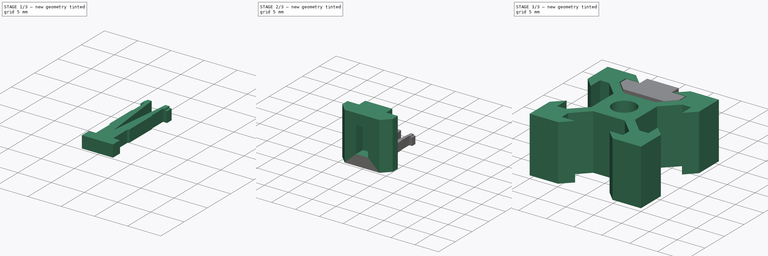
[diagram: build sequence overview — one tinted view per stage of 3, left to right]
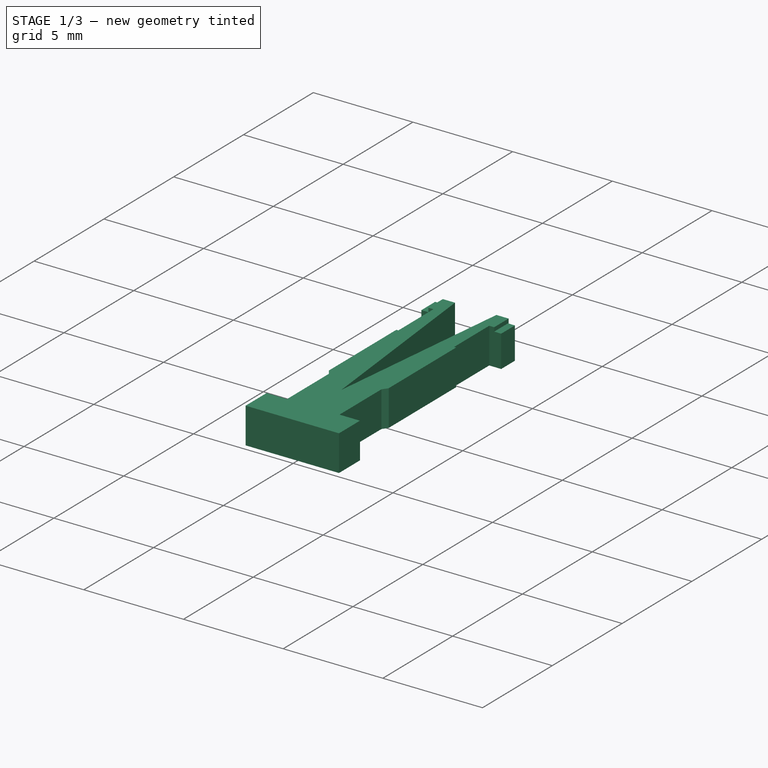
[diagram: stage 1 of 3 — iso view after this stage's code; geometry added in this stage tinted green]
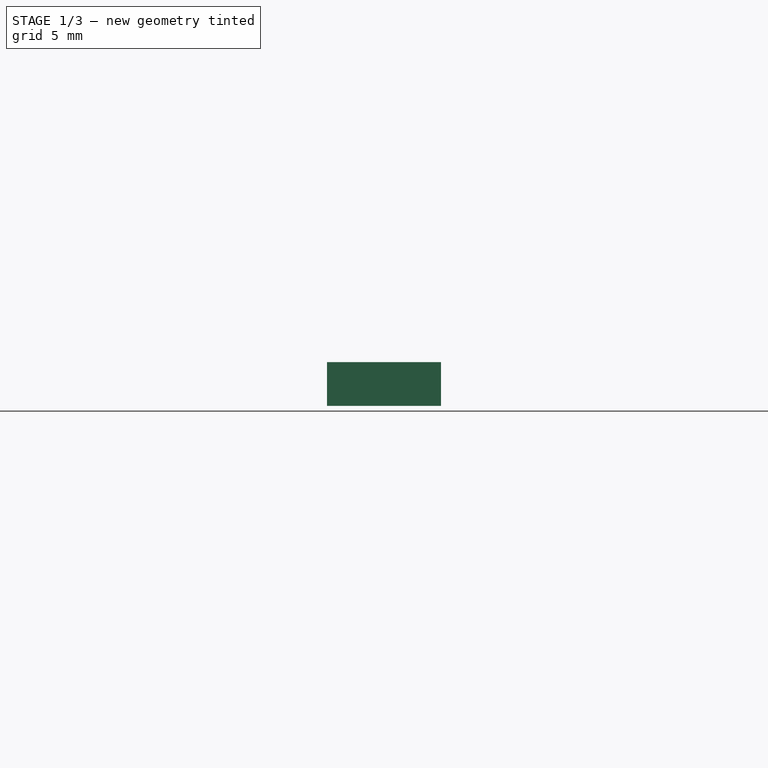
[diagram: stage 1 of 3 — front view after this stage's code; geometry added in this stage tinted green]
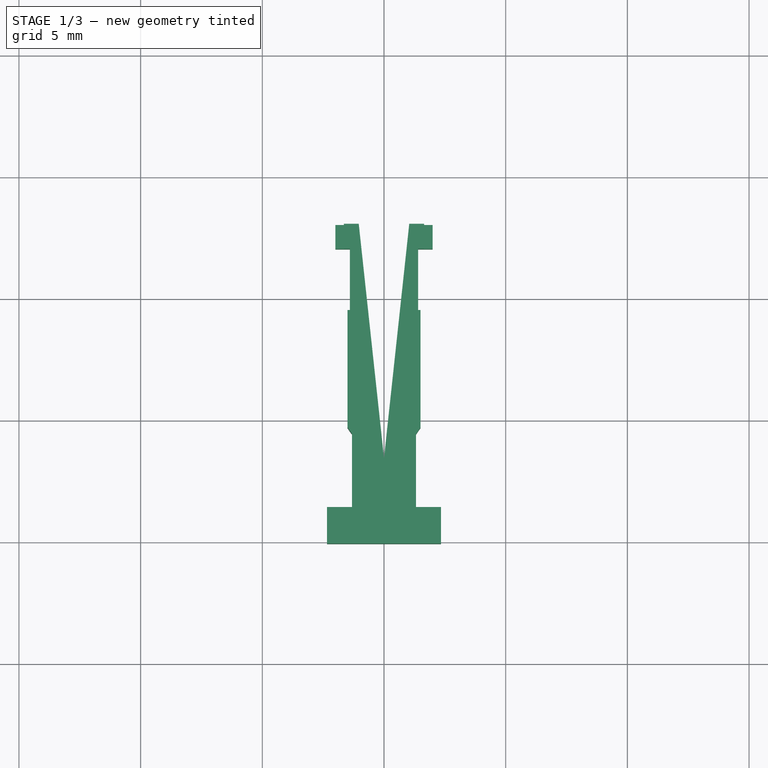
[diagram: stage 1 of 3 — top view after this stage's code; geometry added in this stage tinted green]
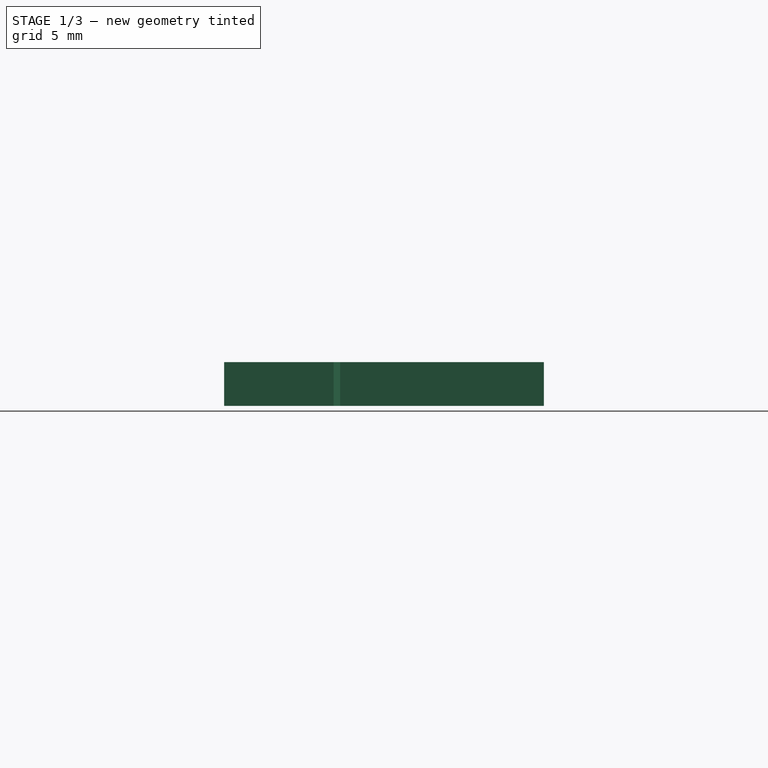
[diagram: stage 1 of 3 — right view after this stage's code; geometry added in this stage tinted green]
FCSTD DOCUMENT  (FreeCAD 0.21R33694 (Git))
Label: attache_3_mm
License: All rights reserved
LicenseURL: http://en.wikipedia.org/wiki/All_rights_reserved
objects: Sketcher::SketchObject×6, PartDesign::Pad×3, PartDesign::Body×3, App::Part×3, PartDesign::Pocket×2, Part::Extrusion×1
note: 20 computed .brp shape members not serialized (recipe doc carries the construction recipe); baked Part::Feature solids carry a one-line shape summary decoded from their .brp

FEATURE [PartDesign::Body] Body  label="ecrou"
  Group = -> [Sketch001,Pad,Sketch002,Pocket,Sketch003,Pocket001]
  Origin = -> Origin001
  Placement = pos=(0,0,-10.2) rot=(0,0,1;0rad)
  Tip = -> Pocket001
FEATURE [App::Part] Part  label="ecrou_3mm"
  Group = -> [Body]
  Origin = -> Origin
FEATURE [Sketcher::SketchObject] Sketch004
  FullyConstrained = false
  MapMode = 5
  Support = -> [XY_Plane003]
  sketch-geometry (23):
    g0: LineSegment StartX=-2.34201 StartY=4.93918 StartZ=0 EndX=-2.34201 EndY=6.43918 EndZ=0
    g1: LineSegment StartX=-2.34201 StartY=6.43918 StartZ=0 EndX=-1.31688 EndY=6.43918 EndZ=0
    g2: LineSegment StartX=-1.31688 StartY=6.43918 StartZ=0 EndX=-1.31688 EndY=9.43918 EndZ=0
    g3: LineSegment StartX=-1.31688 StartY=9.43918 StartZ=0 EndX=-1.5 EndY=9.70266 EndZ=0
    g4: LineSegment StartX=-1.5 StartY=9.70266 StartZ=0 EndX=-1.5 EndY=14.5353 EndZ=0
    g5: LineSegment StartX=-1.5 StartY=14.5353 StartZ=0 EndX=-1.4 EndY=14.5353 EndZ=0
    g6: LineSegment StartX=-1.4 StartY=14.5353 StartZ=0 EndX=-1.4 EndY=17.0457 EndZ=0
    g7: LineSegment StartX=-1.4 StartY=17.0457 StartZ=0 EndX=-2 EndY=17.0457 EndZ=0
    g8: LineSegment StartX=-2 StartY=17.0457 StartZ=0 EndX=-2 EndY=18.0296 EndZ=0
    g9: LineSegment StartX=-2 StartY=18.0296 StartZ=0 EndX=-1.03757 EndY=18.0296 EndZ=0
    g10: LineSegment StartX=-1.03757 StartY=18.0296 StartZ=0 EndX=0 EndY=8.45335 EndZ=0
    g11: LineSegment StartX=0 StartY=8.45335 StartZ=0 EndX=1.03757 EndY=18.0296 EndZ=0
    g12: LineSegment StartX=1.03757 StartY=18.0296 StartZ=0 EndX=2 EndY=18.0296 EndZ=0
    g13: LineSegment StartX=2 StartY=18.0296 StartZ=0 EndX=2 EndY=17.0457 EndZ=0
    g14: LineSegment StartX=2 StartY=17.0457 StartZ=0 EndX=1.4 EndY=17.0457 EndZ=0
    g15: LineSegment StartX=1.4 StartY=17.0457 StartZ=0 EndX=1.4 EndY=14.5353 EndZ=0
    g16: LineSegment StartX=1.4 StartY=14.5353 StartZ=0 EndX=1.5 EndY=14.5353 EndZ=0
    g17: LineSegment StartX=1.5 StartY=14.5353 StartZ=0 EndX=1.5 EndY=9.70266 EndZ=0
    g18: LineSegment StartX=1.5 StartY=9.70266 StartZ=0 EndX=1.31688 EndY=9.43918 EndZ=0
    g19: LineSegment StartX=1.31688 StartY=9.43918 StartZ=0 EndX=1.31688 EndY=6.43918 EndZ=0
    g20: LineSegment StartX=1.31688 StartY=6.43918 StartZ=0 EndX=2.34201 EndY=6.43918 EndZ=0
    g21: LineSegment StartX=2.34201 StartY=6.43918 StartZ=0 EndX=2.34201 EndY=4.93918 EndZ=0
    g22: LineSegment StartX=2.34201 StartY=4.93918 StartZ=0 EndX=-2.34201 EndY=4.93918 EndZ=0
  constraints (50):
    c: Coincident(g0,g1)
    c: Coincident(g1,g2)
    c: Coincident(g2,g3)
    c: Coincident(g3,g4)
    c: Vertical(g4)
    c: Coincident(g4,g5)
    c: Coincident(g5,g6)
    c: Vertical(g6)
    c: Coincident(g6,g7)
    c: Coincident(g7,g8)
    c: Coincident(g8,g9)
    c: Horizontal(g9)
    c: Coincident(g9,g10)
    c: PointOnObject(g10,g-2)
    c: Coincident(g10,g11)
    c: Coincident(g11,g12)
    c: Coincident(g12,g13)
    c: Coincident(g13,g14)
    c: Coincident(g14,g15)
    c: Vertical(g15)
    c: Coincident(g15,g16)
    c: Coincident(g17,g18)
    c: Coincident(g18,g19)
    c: Vertical(g19)
    c: Coincident(g19,g20)
    c: Coincident(g20,g21)
    c: Coincident(g21,g22)
    c: Coincident(g22,g0)
    c: Symmetric(g19,g1,g-2)
    c: Symmetric(g0,g20,g-2)
    c: Symmetric(g21,g0,g-2)
    c: Symmetric(g18,g2,g-2)
    c: Symmetric(g3,g17,g-2)
    c: Symmetric(g16,g4,g-2)
    c: Symmetric(g14,g6,g-2)
    c: Symmetric(g7,g13,g-2)
    c: Symmetric(g9,g11,g-2)
    c: Symmetric(g12,g8,g-2)
    c: Horizontal(g7)
    c: Horizontal(g5)
    c: Horizontal(g16)
    c: Vertical(g8)
    c: DistanceX(g8,g12) = 4
    c: DistanceX(g5,g15) = 2.8
    c: Horizontal(g20)
    c: Vertical(g0)
    c: DistanceY(g0,g0) = 1.5
    c: DistanceY(g1,g2) = 3
    c: DistanceX(g3,g17) = 3
    c: Coincident(g16,g17)
FEATURE [PartDesign::Pad] Pad001
  Direction = (0,0,1)
  Length = 1.6
  Length2 = 10
  Profile = -> Sketch004
  ReferenceAxis = -> Sketch004 [N_Axis]
  Type = 0
FEATURE [PartDesign::Body] Body001  label="Corps"
  Group = -> [Sketch004,Pad001]
  Origin = -> Origin003
  Tip = -> Pad001
FEATURE [App::Part] Part001  label="tenon_tres_petit"
  Group = -> [Body001]
  Origin = -> Origin002
FEATURE [Sketcher::SketchObject] Sketch005
  FullyConstrained = false
  MapMode = 5
  Support = -> [XY_Plane005]
  sketch-geometry (23):
    g0: LineSegment StartX=-2.34201 StartY=4.93918 StartZ=0 EndX=-2.34201 EndY=6.43918 EndZ=0
    g1: LineSegment StartX=-2.34201 StartY=6.43918 StartZ=0 EndX=-1.31688 EndY=6.43918 EndZ=0
    g2: LineSegment StartX=-1.31688 StartY=6.43918 StartZ=0 EndX=-1.31688 EndY=9.43918 EndZ=0
    g3: LineSegment StartX=-1.31688 StartY=9.43918 StartZ=0 EndX=-1.5 EndY=9.70266 EndZ=0
    g4: LineSegment StartX=-1.5 StartY=9.70266 StartZ=0 EndX=-1.5 EndY=14.5353 EndZ=0
    g5: LineSegment StartX=-1.5 StartY=14.5353 StartZ=0 EndX=-1.4 EndY=14.5353 EndZ=0
    g6: LineSegment StartX=-1.4 StartY=14.5353 StartZ=0 EndX=-1.4 EndY=17.0457 EndZ=0
    g7: LineSegment StartX=-1.4 StartY=17.0457 StartZ=0 EndX=-1.65 EndY=17.0457 EndZ=0
    g8: LineSegment StartX=-1.65 StartY=17.0457 StartZ=0 EndX=-1.65 EndY=18.0757 EndZ=0
    g9: LineSegment StartX=-1.65 StartY=18.0757 StartZ=0 EndX=-1.03757 EndY=18.0757 EndZ=0
    g10: LineSegment StartX=-1.03757 StartY=18.0757 StartZ=0 EndX=0 EndY=8.45335 EndZ=0
    g11: LineSegment StartX=0 StartY=8.45335 StartZ=0 EndX=1.03757 EndY=18.0757 EndZ=0
    g12: LineSegment StartX=1.03757 StartY=18.0757 StartZ=0 EndX=1.65 EndY=18.0757 EndZ=0
    g13: LineSegment StartX=1.65 StartY=18.0757 StartZ=0 EndX=1.65 EndY=17.0457 EndZ=0
    g14: LineSegment StartX=1.65 StartY=17.0457 StartZ=0 EndX=1.4 EndY=17.0457 EndZ=0
    g15: LineSegment StartX=1.4 StartY=17.0457 StartZ=0 EndX=1.4 EndY=14.5353 EndZ=0
    g16: LineSegment StartX=1.4 StartY=14.5353 StartZ=0 EndX=1.5 EndY=14.5353 EndZ=0
    g17: LineSegment StartX=1.5 StartY=14.5353 StartZ=0 EndX=1.5 EndY=9.70266 EndZ=0
    g18: LineSegment StartX=1.5 StartY=9.70266 StartZ=0 EndX=1.31688 EndY=9.43918 EndZ=0
    g19: LineSegment StartX=1.31688 StartY=9.43918 StartZ=0 EndX=1.31688 EndY=6.43918 EndZ=0
    g20: LineSegment StartX=1.31688 StartY=6.43918 StartZ=0 EndX=2.34201 EndY=6.43918 EndZ=0
    g21: LineSegment StartX=2.34201 StartY=6.43918 StartZ=0 EndX=2.34201 EndY=4.93918 EndZ=0
    g22: LineSegment StartX=2.34201 StartY=4.93918 StartZ=0 EndX=-2.34201 EndY=4.93918 EndZ=0
  constraints (50):
    c: Coincident(g0,g1)
    c: Coincident(g1,g2)
    c: Coincident(g2,g3)
    c: Coincident(g3,g4)
    c: Vertical(g4)
    c: Coincident(g4,g5)
    c: Coincident(g5,g6)
    c: Vertical(g6)
    c: Coincident(g6,g7)
    c: Coincident(g7,g8)
    c: Coincident(g8,g9)
    c: Horizontal(g9)
    c: Coincident(g9,g10)
    c: PointOnObject(g10,g-2)
    c: Coincident(g10,g11)
    c: Coincident(g11,g12)
    c: Coincident(g12,g13)
    c: Coincident(g13,g14)
    c: Coincident(g14,g15)
    c: Vertical(g15)
    c: Coincident(g15,g16)
    c: Coincident(g17,g18)
    c: Coincident(g18,g19)
    c: Vertical(g19)
    c: Coincident(g19,g20)
    c: Coincident(g20,g21)
    c: Coincident(g21,g22)
    c: Coincident(g22,g0)
    c: Symmetric(g19,g1,g-2)
    c: Symmetric(g0,g20,g-2)
    c: Symmetric(g21,g0,g-2)
    c: Symmetric(g18,g2,g-2)
    c: Symmetric(g3,g17,g-2)
    c: Symmetric(g16,g4,g-2)
    c: Symmetric(g14,g6,g-2)
    c: Symmetric(g7,g13,g-2)
    c: Symmetric(g9,g11,g-2)
    c: Symmetric(g12,g8,g-2)
    c: Horizontal(g7)
    c: Horizontal(g5)
    c: Horizontal(g16)
    c: Vertical(g8)
    c: DistanceX(g8,g12) = 3.3
    c: DistanceX(g5,g15) = 2.8
    c: Horizontal(g20)
    c: Vertical(g0)
    c: DistanceY(g0,g0) = 1.5
    c: DistanceY(g1,g2) = 3
    c: DistanceX(g3,g17) = 3
    c: Coincident(g16,g17)
FEATURE [PartDesign::Pad] Pad002
  Direction = (0,0,1)
  Length = 1.8
  Length2 = 10
  Profile = -> Sketch005
  ReferenceAxis = -> Sketch005 [N_Axis]
  Type = 0
FEATURE [PartDesign::Body] Body002  label="Corps001"
  Group = -> [Sketch005,Pad002]
  Origin = -> Origin005
  Tip = -> Pad002
FEATURE [App::Part] Part002  label="tenon_petit"
  Group = -> [Body002]
  Origin = -> Origin004
  Placement = pos=(16.2,0,0) rot=(0,0,1;0rad)
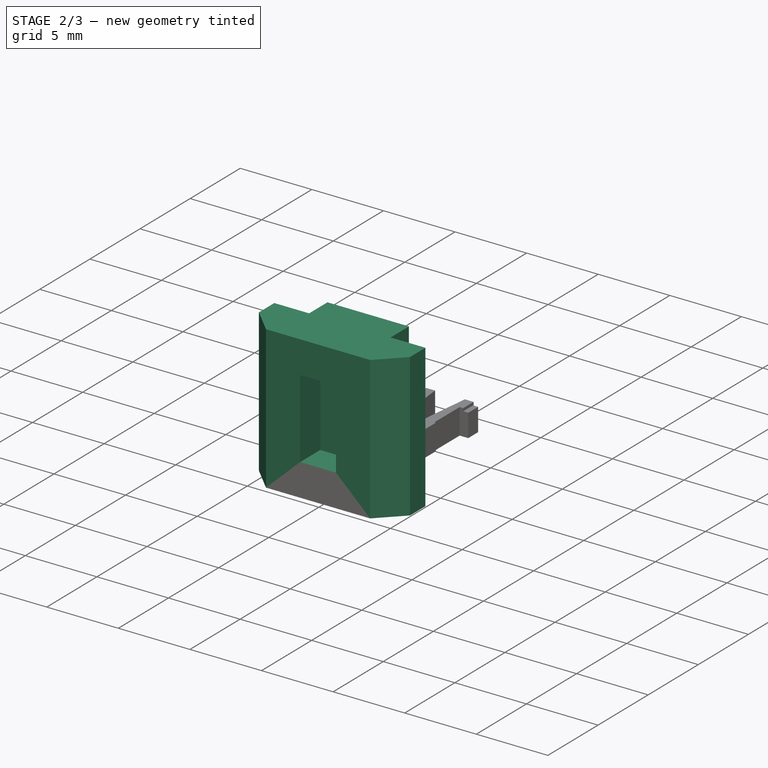
[diagram: stage 2 of 3 — iso view after this stage's code; geometry added in this stage tinted green]
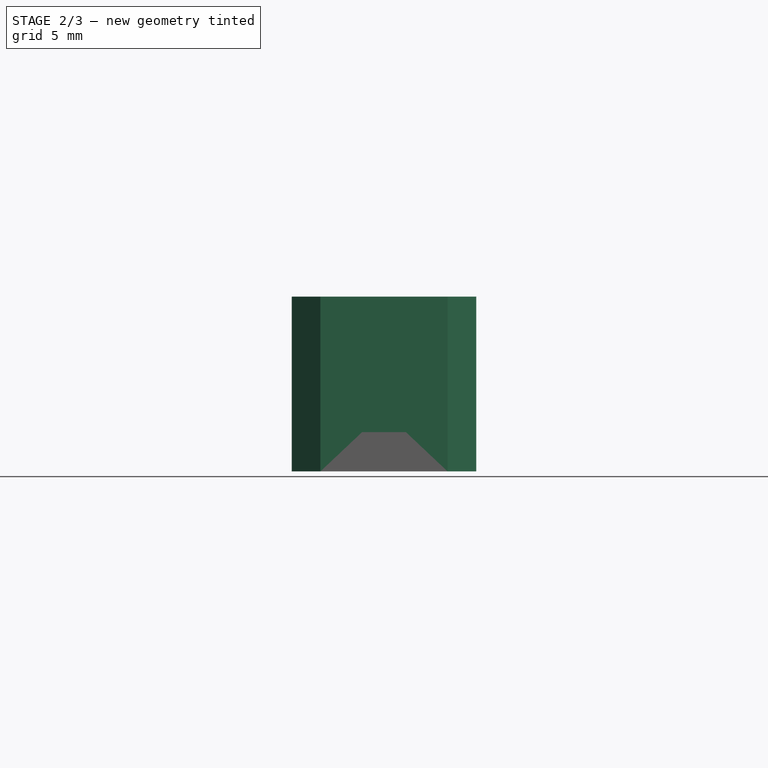
[diagram: stage 2 of 3 — front view after this stage's code; geometry added in this stage tinted green]
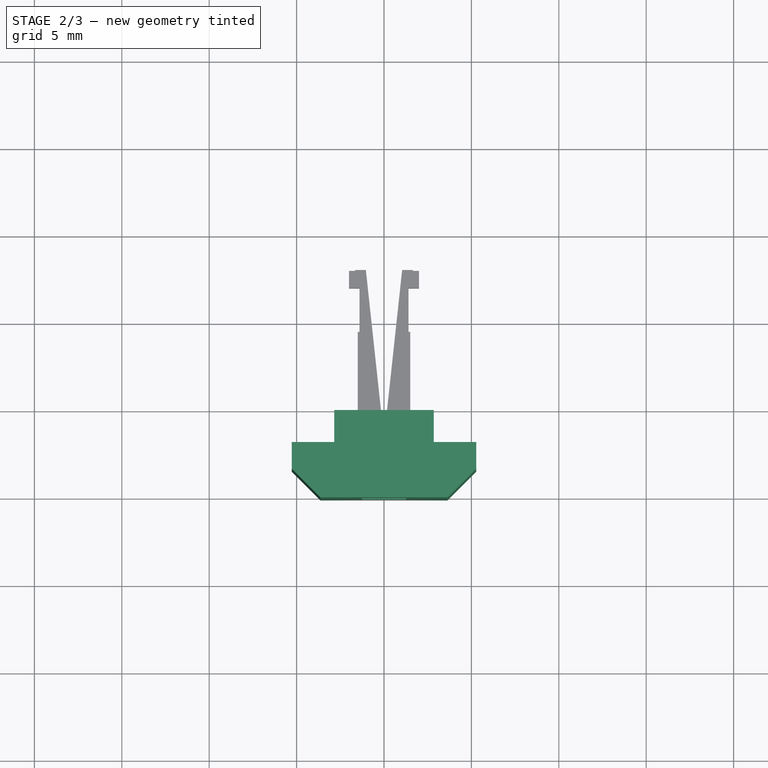
[diagram: stage 2 of 3 — top view after this stage's code; geometry added in this stage tinted green]
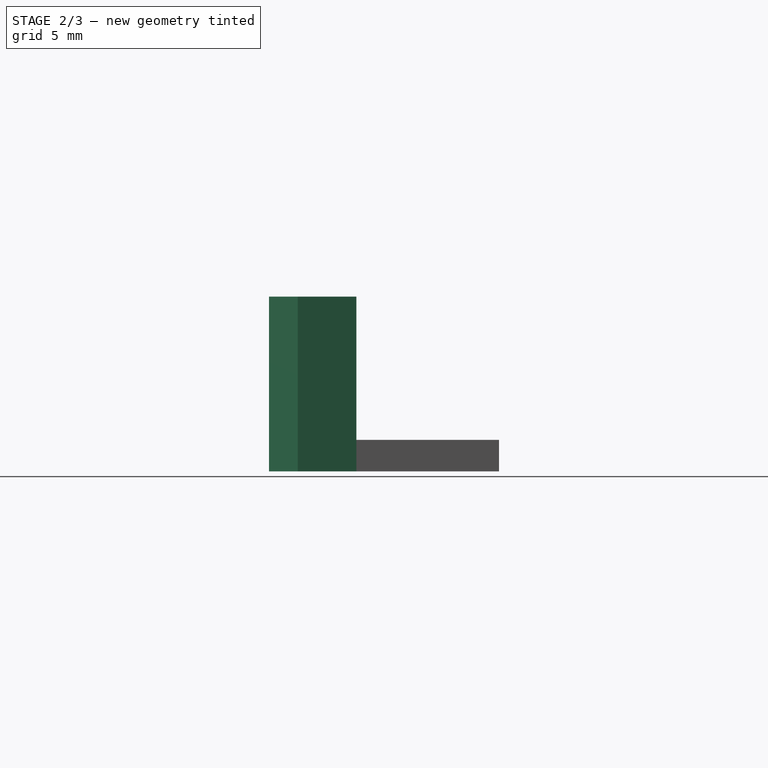
[diagram: stage 2 of 3 — right view after this stage's code; geometry added in this stage tinted green]
FEATURE [Sketcher::SketchObject] Sketch001  label="section_ecrou_borgne"
  FullyConstrained = false
  MapMode = 5
  Support = -> [XY_Plane001]
  sketch-geometry (10):
    g0: LineSegment StartX=5.27701 StartY=8.09321 StartZ=0 EndX=5.27701 EndY=6.56012 EndZ=0
    g1: LineSegment StartX=5.27701 StartY=6.56012 StartZ=0 EndX=3.63701 EndY=4.92012 EndZ=0
    g2: LineSegment StartX=3.63701 StartY=4.92012 StartZ=0 EndX=-3.63701 EndY=4.92012 EndZ=0
    g3: LineSegment StartX=-3.63701 StartY=4.92012 StartZ=0 EndX=-5.27701 EndY=6.56012 EndZ=0
    g4: LineSegment StartX=-5.27701 StartY=6.56012 StartZ=0 EndX=-5.27701 EndY=8.09321 EndZ=0
    g5: LineSegment StartX=-5.27701 StartY=8.09321 StartZ=0 EndX=-2.84565 EndY=8.09321 EndZ=0
    g6: LineSegment StartX=-2.84565 StartY=8.09321 StartZ=0 EndX=-2.84565 EndY=9.92012 EndZ=0
    g7: LineSegment StartX=-2.84565 StartY=9.92012 StartZ=0 EndX=2.84565 EndY=9.92012 EndZ=0
    g8: LineSegment StartX=2.84565 StartY=9.92012 StartZ=0 EndX=2.84565 EndY=8.09321 EndZ=0
    g9: LineSegment StartX=2.84565 StartY=8.09321 StartZ=0 EndX=5.27701 EndY=8.09321 EndZ=0
  constraints (21):
    c: Coincident(g0,g1)
    c: Coincident(g1,g2)
    c: Coincident(g2,g3)
    c: Coincident(g3,g4)
    c: Vertical(g4)
    c: Coincident(g4,g5)
    c: Coincident(g5,g6)
    c: Vertical(g6)
    c: Coincident(g6,g7)
    c: Coincident(g7,g8)
    c: Coincident(g8,g9)
    c: Coincident(g9,g0)
    c: Symmetric(g6,g7,g-2)
    c: Symmetric(g5,g8,g-2)
    c: Symmetric(g3,g0,g-2)
    c: Symmetric(g1,g2,g-2)
    c: Horizontal(g9)
    c: Symmetric(g0,g4,g-2)
    c: DistanceY(g2,g6) = 5
    c: DistanceY(g2,g3) = 1.64
    c: Angle(g2,g3) = 2.35619
FEATURE [PartDesign::Pad] Pad
  Direction = (0,0,1)
  Length = 10
  Length2 = 10
  Profile = -> Sketch001
  ReferenceAxis = -> Sketch001 [N_Axis]
  Type = 0
FEATURE [Sketcher::SketchObject] Sketch002
  FullyConstrained = true
  MapMode = 5
  Placement = pos=(0,4.92012,0) rot=(1,0,0;1.5708rad)
  Support = -> [Pad]
  sketch-geometry (4):
    g0: LineSegment StartX=-1.25 StartY=7.75 StartZ=0 EndX=1.25 EndY=7.75 EndZ=0
    g1: LineSegment StartX=1.25 StartY=7.75 StartZ=0 EndX=1.25 EndY=2.25 EndZ=0
    g2: LineSegment StartX=1.25 StartY=2.25 StartZ=0 EndX=-1.25 EndY=2.25 EndZ=0
    g3: LineSegment StartX=-1.25 StartY=2.25 StartZ=0 EndX=-1.25 EndY=7.75 EndZ=0
  constraints (11):
    c: Coincident(g0,g1)
    c: Horizontal(g0)
    c: Vertical(g1)
    c: DistanceY(g1,g1) = 5.5
    c: DistanceY(g-1,g1) = 2.25
    c: Symmetric(g1,g2,g-2)
    c: DistanceX(g2,g1) = 2.5
    c: Coincident(g2,g1)
    c: Coincident(g3,g2)
    c: Coincident(g3,g0)
    c: Vertical(g3)
FEATURE [PartDesign::Pocket] Pocket
  BaseFeature = -> Pad
  Direction = (0,1,-2e-16)
  Length = 2
  Length2 = 5
  Profile = -> Sketch002
  ReferenceAxis = -> Sketch002 [N_Axis]
  Type = 0
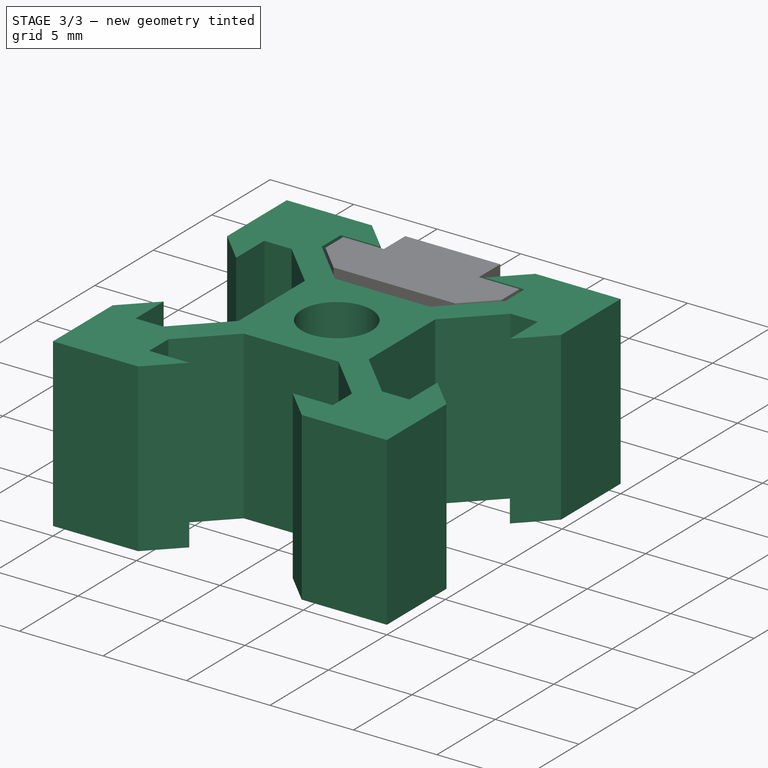
[diagram: stage 3 of 3 — iso view after this stage's code; geometry added in this stage tinted green]
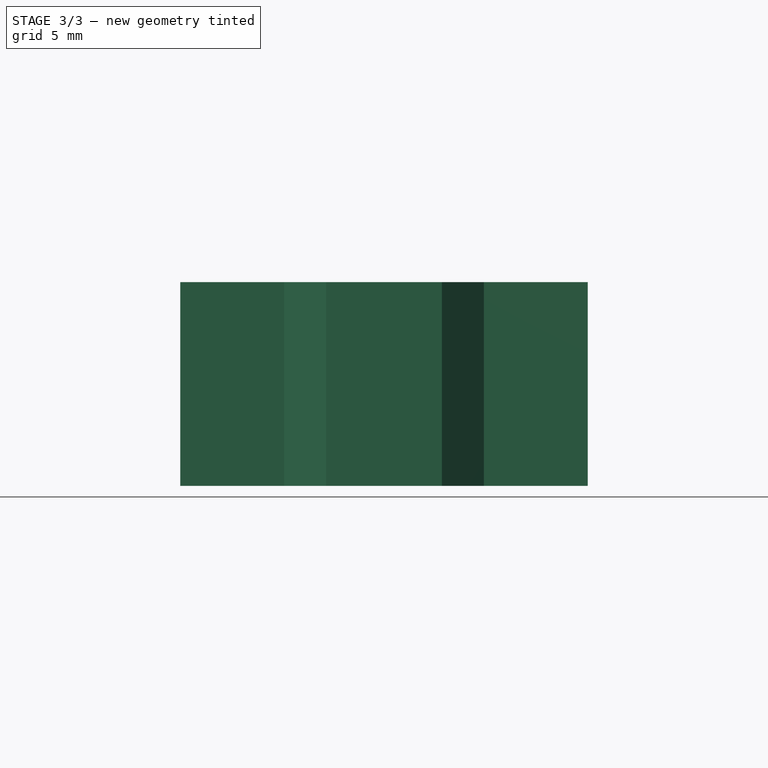
[diagram: stage 3 of 3 — front view after this stage's code; geometry added in this stage tinted green]
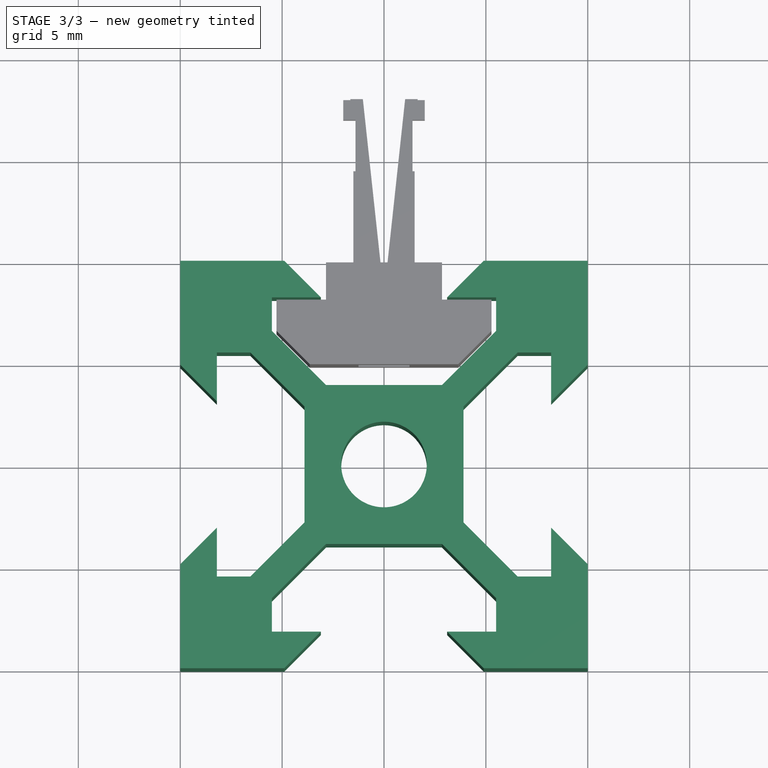
[diagram: stage 3 of 3 — top view after this stage's code; geometry added in this stage tinted green]
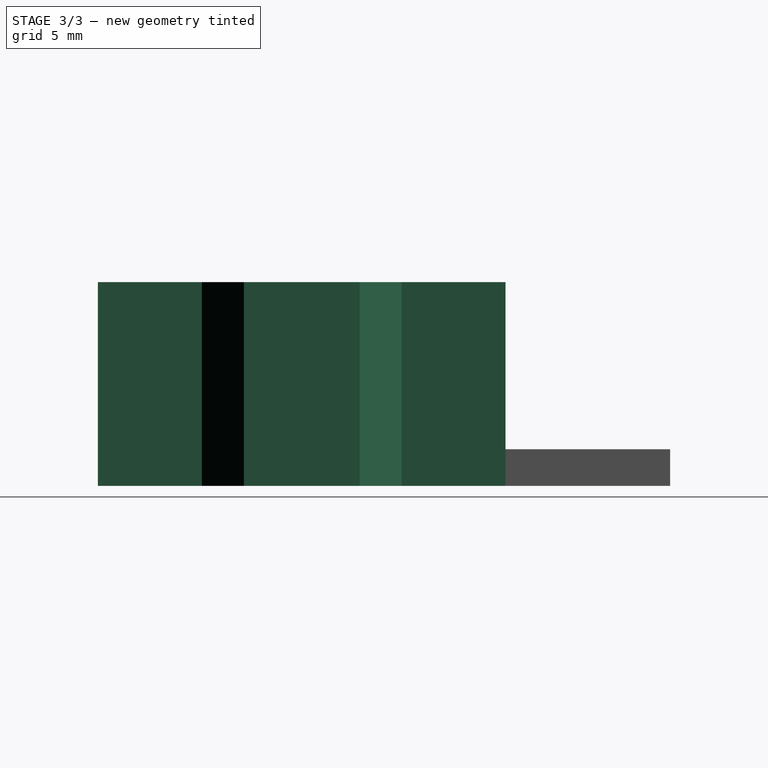
[diagram: stage 3 of 3 — right view after this stage's code; geometry added in this stage tinted green]
FEATURE [Sketcher::SketchObject] Sketch
  FullyConstrained = false
  sketch-geometry (49):
    g0: Circle CenterX=0 CenterY=0 CenterZ=0 NormalX=0 NormalY=0 NormalZ=-1 AngleXU=0 Radius=2.1
    g1: LineSegment StartX=-2.84 StartY=3.90066 StartZ=0 EndX=-5.49934 EndY=6.56 EndZ=0
    g2: LineSegment StartX=-5.49934 StartY=6.56 StartZ=0 EndX=-5.49934 EndY=8.2 EndZ=0
    g3: LineSegment StartX=-5.49934 StartY=8.2 StartZ=0 EndX=-3.1 EndY=8.2 EndZ=0
    g4: LineSegment StartX=-3.1 StartY=8.2 StartZ=0 EndX=-4.9 EndY=10 EndZ=0
    g5: LineSegment StartX=-4.9 StartY=10 StartZ=0 EndX=-10 EndY=10 EndZ=0
    g6: LineSegment StartX=-10 StartY=10 StartZ=0 EndX=-10 EndY=4.9 EndZ=0
    g7: LineSegment StartX=-10 StartY=4.9 StartZ=0 EndX=-8.2 EndY=3.1 EndZ=0
    g8: LineSegment StartX=-8.2 StartY=3.1 StartZ=0 EndX=-8.2 EndY=5.49934 EndZ=0
    g9: LineSegment StartX=-8.2 StartY=5.49934 StartZ=0 EndX=-6.56 EndY=5.49934 EndZ=0
    g10: LineSegment StartX=-6.56 StartY=5.49934 StartZ=0 EndX=-3.90066 EndY=2.84 EndZ=0
    g11: LineSegment StartX=-3.90066 StartY=2.84 StartZ=0 EndX=-3.90066 EndY=-1.3e-15 EndZ=0
    g12: LineSegment StartX=-3.90066 StartY=-1.1e-15 StartZ=0 EndX=-3.90066 EndY=-2.84 EndZ=0
    g13: LineSegment StartX=-3.90066 StartY=-2.84 StartZ=0 EndX=-6.56 EndY=-5.49934 EndZ=0
    g14: LineSegment StartX=-6.56 StartY=-5.49934 StartZ=0 EndX=-8.2 EndY=-5.49934 EndZ=0
    g15: LineSegment StartX=-8.2 StartY=-5.49934 StartZ=0 EndX=-8.2 EndY=-3.1 EndZ=0
    g16: LineSegment StartX=-8.2 StartY=-3.1 StartZ=0 EndX=-10 EndY=-4.9 EndZ=0
    g17: LineSegment StartX=-10 StartY=-4.9 StartZ=0 EndX=-10 EndY=-10 EndZ=0
    g18: LineSegment StartX=-10 StartY=-10 StartZ=0 EndX=-4.9 EndY=-10 EndZ=0
    g19: LineSegment StartX=-4.9 StartY=-10 StartZ=0 EndX=-3.1 EndY=-8.2 EndZ=0
    g20: LineSegment StartX=-3.1 StartY=-8.2 StartZ=0 EndX=-5.49934 EndY=-8.2 EndZ=0
    g21: LineSegment StartX=-5.49934 StartY=-8.2 StartZ=0 EndX=-5.49934 EndY=-6.56 EndZ=0
    g22: LineSegment StartX=-5.49934 StartY=-6.56 StartZ=0 EndX=-2.84 EndY=-3.90066 EndZ=0
    g23: LineSegment StartX=-2.84 StartY=-3.90066 StartZ=0 EndX=-4e-16 EndY=-3.90066 EndZ=0
    g24: LineSegment StartX=-6e-16 StartY=-3.90066 StartZ=0 EndX=2.84 EndY=-3.90066 EndZ=0
    g25: LineSegment StartX=2.84 StartY=-3.90066 StartZ=0 EndX=5.49934 EndY=-6.56 EndZ=0
    g26: LineSegment StartX=5.49934 StartY=-6.56 StartZ=0 EndX=5.49934 EndY=-8.2 EndZ=0
    g27: LineSegment StartX=5.49934 StartY=-8.2 StartZ=0 EndX=3.1 EndY=-8.2 EndZ=0
    g28: LineSegment StartX=3.1 StartY=-8.2 StartZ=0 EndX=4.9 EndY=-10 EndZ=0
    g29: LineSegment StartX=4.9 StartY=-10 StartZ=0 EndX=10 EndY=-10 EndZ=0
    g30: LineSegment StartX=10 StartY=-10 StartZ=0 EndX=10 EndY=-4.9 EndZ=0
    g31: LineSegment StartX=10 StartY=-4.9 StartZ=0 EndX=8.2 EndY=-3.1 EndZ=0
    g32: LineSegment StartX=8.2 StartY=-3.1 StartZ=0 EndX=8.2 EndY=-5.49934 EndZ=0
    g33: LineSegment StartX=8.2 StartY=-5.49934 StartZ=0 EndX=6.56 EndY=-5.49934 EndZ=0
    g34: LineSegment StartX=6.56 StartY=-5.49934 StartZ=0 EndX=3.90066 EndY=-2.84 EndZ=0
    g35: LineSegment StartX=3.90066 StartY=-2.84 StartZ=0 EndX=3.90066 EndY=-1.3e-15 EndZ=0
    g36: LineSegment StartX=3.90066 StartY=-1.1e-15 StartZ=0 EndX=3.90066 EndY=2.84 EndZ=0
    g37: LineSegment StartX=3.90066 StartY=2.84 StartZ=0 EndX=6.56 EndY=5.49934 EndZ=0
    g38: LineSegment StartX=6.56 StartY=5.49934 StartZ=0 EndX=8.2 EndY=5.49934 EndZ=0
    g39: LineSegment StartX=8.2 StartY=5.49934 StartZ=0 EndX=8.2 EndY=3.1 EndZ=0
    g40: LineSegment StartX=8.2 StartY=3.1 StartZ=0 EndX=10 EndY=4.9 EndZ=0
    g41: LineSegment StartX=10 StartY=4.9 StartZ=0 EndX=10 EndY=10 EndZ=0
    g42: LineSegment StartX=10 StartY=10 StartZ=0 EndX=4.9 EndY=10 EndZ=0
    g43: LineSegment StartX=4.9 StartY=10 StartZ=0 EndX=3.1 EndY=8.2 EndZ=0
    g44: LineSegment StartX=3.1 StartY=8.2 StartZ=0 EndX=5.49934 EndY=8.2 EndZ=0
    g45: LineSegment StartX=5.49934 StartY=8.2 StartZ=0 EndX=5.49934 EndY=6.56 EndZ=0
    g46: LineSegment StartX=5.49934 StartY=6.56 StartZ=0 EndX=2.84 EndY=3.90066 EndZ=0
    g47: LineSegment StartX=2.84 StartY=3.90066 StartZ=0 EndX=0 EndY=3.90066 EndZ=0
    g48: LineSegment StartX=0 StartY=3.90066 StartZ=0 EndX=-2.84 EndY=3.90066 EndZ=0
FEATURE [Part::Extrusion] Extrude  label="2020"
  Base = -> Sketch
  Dir = (0,0,1)
  DirMode = 2
  FaceMakerClass = Part::FaceMakerBullseye
  LengthFwd = 10
  LengthRev = 0
  Solid = true
  Symmetric = false
FEATURE [Sketcher::SketchObject] Sketch003
  ExternalGeometry = -> [Pocket]
  FullyConstrained = false
  MapMode = 5
  Placement = pos=(0,6.92012,-1.1e-15) rot=(1,0,0;1.5708rad)
  Support = -> [Pocket]
  expr: Constraints[10] = .Constraints.debord
  sketch-geometry (4):
    g0: LineSegment StartX=-1.25 StartY=6.75 StartZ=0 EndX=1.00423 EndY=6.75 EndZ=0
    g1: LineSegment StartX=1.00423 StartY=6.75 StartZ=0 EndX=1.00423 EndY=3.25 EndZ=0
    g2: LineSegment StartX=1.00423 StartY=3.25 StartZ=0 EndX=-1.25 EndY=3.25 EndZ=0
    g3: LineSegment StartX=-1.25 StartY=3.25 StartZ=0 EndX=-1.25 EndY=6.75 EndZ=0
  constraints (11):
    c: Coincident(g0,g1)
    c: Coincident(g1,g2)
    c: Coincident(g2,g3)
    c: Coincident(g3,g0)
    c: Horizontal(g0)
    c: Horizontal(g2)
    c: Vertical(g1)
    c: Vertical(g3)
    c: Vertical(g-3,g0)
    c: DistanceY(g0,g-3) = 1  'debord'
    c: DistanceY(g-4,g2) = 1
FEATURE [PartDesign::Pocket] Pocket001
  BaseFeature = -> Pocket
  Direction = (0,1,-2e-16)
  Length = 5
  Length2 = 5
  Profile = -> Sketch003
  ReferenceAxis = -> Sketch003 [N_Axis]
  Type = 0
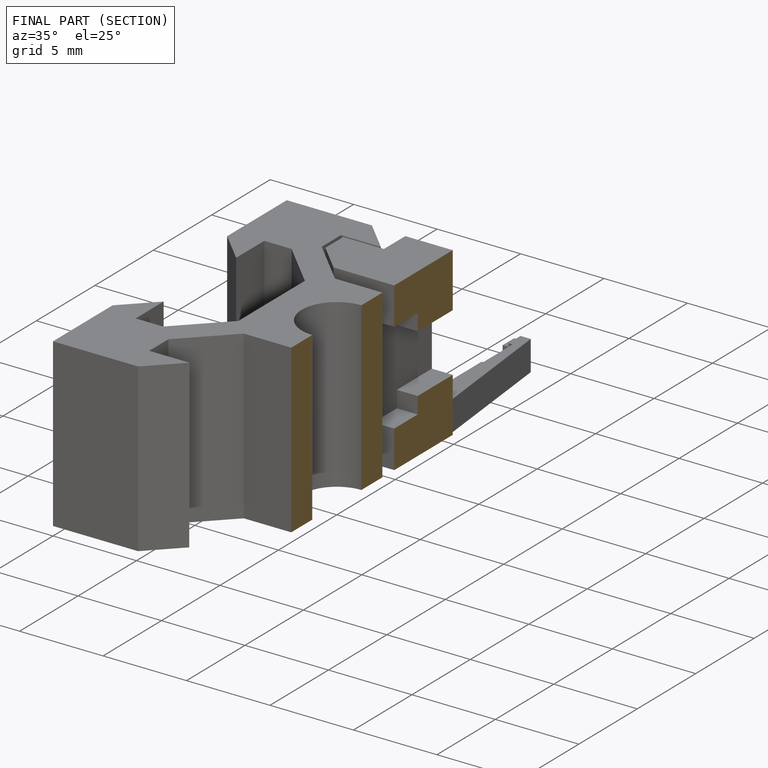
[diagram: finished part — half-section view (interior)]
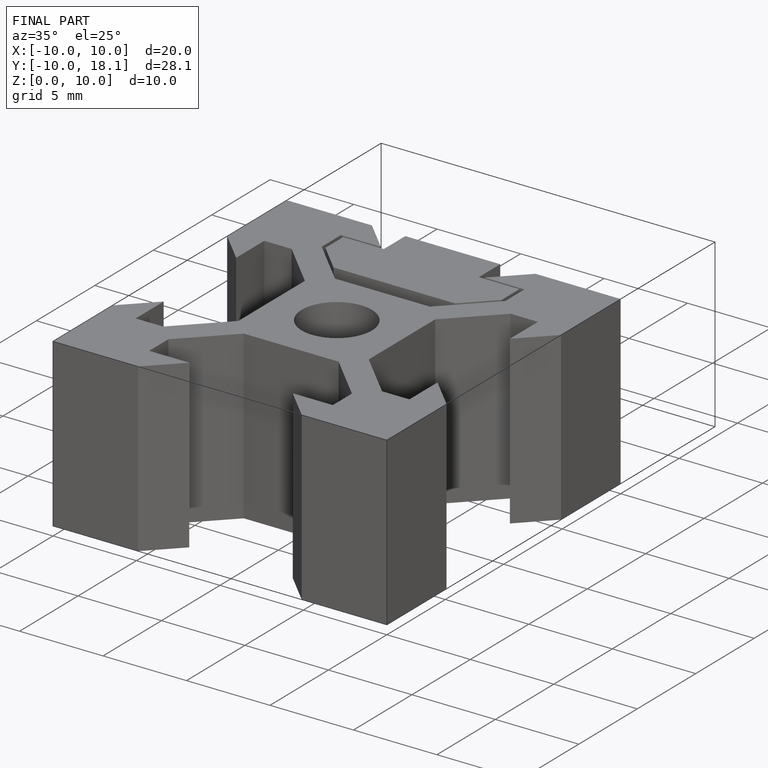
[diagram: finished part — iso view with bounding-box wireframe]
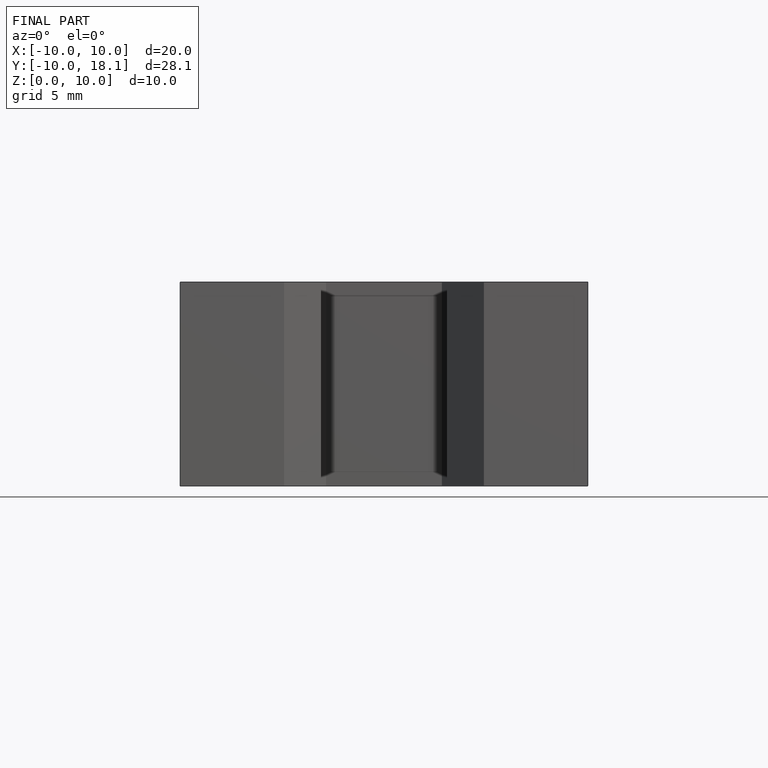
[diagram: finished part — front view with bounding-box wireframe]
